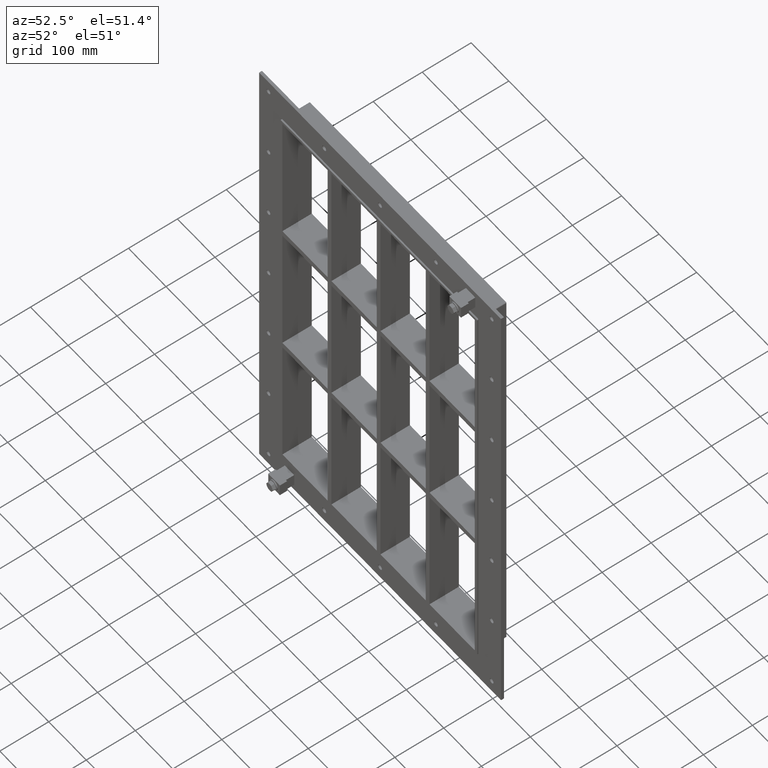
[diagram: clean part render]
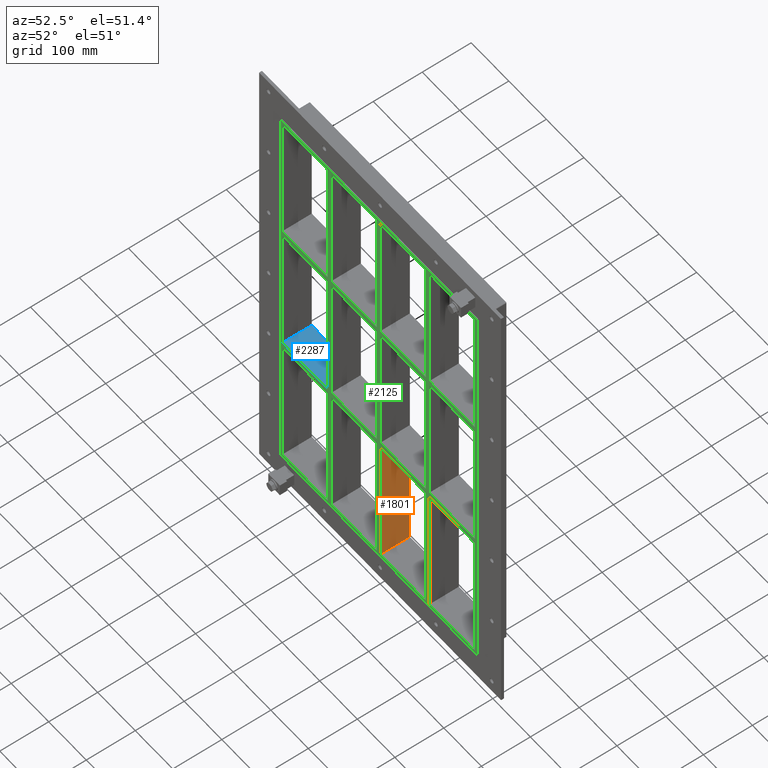
[diagram: same view with three faces highlighted in distinct colors, each labeled with its STEP entity id]
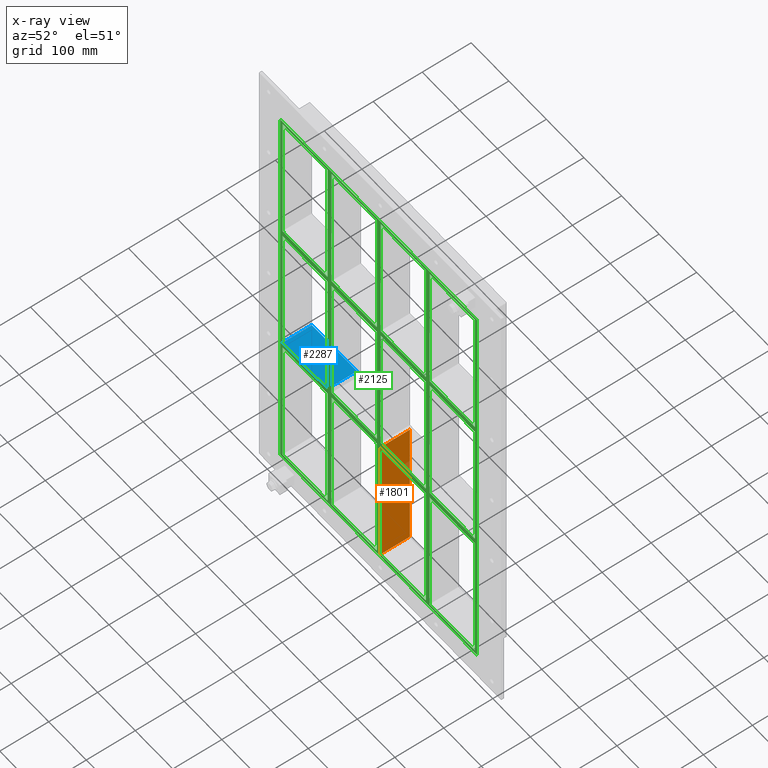
[diagram: x-ray of the same camera — body ghosted, the three highlighted faces saturated]
A machine part, auxiliary view with three faces highlighted in distinct colors.
The next image is the same camera in x-ray (body ghosted, the three faces saturated) — at least one of them is partly hidden behind the body in this view.
Their STEP definitions:

[orange] entity #1801 — the highlighted planar face has unit normal (1, 0, 0).
#1512=CARTESIAN_POINT('',(5.000000000007283,57.0,-151.00000000001125));
#1513=VERTEX_POINT('',#1512);
#1520=CARTESIAN_POINT('',(5.000000000007283,57.0,-428.99999999998164));
#1521=VERTEX_POINT('',#1520);
#1522=CARTESIAN_POINT('',(5.000000000007283,57.0,-151.00000000001125));
#1523=DIRECTION('',(0.0,0.0,-1.0));
#1524=VECTOR('',#1523,277.99999999997044);
#1525=LINE('',#1522,#1524);
#1526=EDGE_CURVE('',#1513,#1521,#1525,.T.);
#1771=CARTESIAN_POINT('',(5.000000000007283,-3.0,429.00000000000011));
#1772=DIRECTION('',(1.0,0.0,0.0));
#1773=DIRECTION('',(0.0,0.0,-1.0));
#1774=AXIS2_PLACEMENT_3D('',#1771,#1772,#1773);
#1775=PLANE('',#1774);
#1776=CARTESIAN_POINT('',(5.000000000007283,-3.0,-151.00000000001125));
#1777=VERTEX_POINT('',#1776);
#1778=CARTESIAN_POINT('',(5.000000000007283,-3.0,-151.00000000001125));
#1779=DIRECTION('',(0.0,1.0,0.0));
#1780=VECTOR('',#1779,60.0);
#1781=LINE('',#1778,#1780);
#1782=EDGE_CURVE('',#1777,#1513,#1781,.T.);
#1783=ORIENTED_EDGE('',*,*,#1782,.F.);
#1784=CARTESIAN_POINT('',(5.000000000007283,-3.0,-428.99999999998164));
#1785=VERTEX_POINT('',#1784);
#1786=CARTESIAN_POINT('',(5.000000000007283,-3.0,-151.00000000001125));
#1787=DIRECTION('',(0.0,0.0,-1.0));
#1788=VECTOR('',#1787,277.99999999997044);
#1789=LINE('',#1786,#1788);
#1790=EDGE_CURVE('',#1777,#1785,#1789,.T.);
#1791=ORIENTED_EDGE('',*,*,#1790,.T.);
#1792=CARTESIAN_POINT('',(5.000000000007283,57.000000000000007,-429.0));
#1793=DIRECTION('',(0.0,-1.0,0.0));
#1794=VECTOR('',#1793,60.000000000000007);
#1795=LINE('',#1792,#1794);
#1796=EDGE_CURVE('',#1521,#1785,#1795,.T.);
#1797=ORIENTED_EDGE('',*,*,#1796,.F.);
#1798=ORIENTED_EDGE('',*,*,#1526,.F.);
#1799=EDGE_LOOP('',(#1783,#1791,#1797,#1798));
#1800=FACE_OUTER_BOUND('',#1799,.T.);
#1801=ADVANCED_FACE('',(#1800),#1775,.T.);

[blue] entity #2287 — the highlighted planar face has unit normal (0, 0, 1).
#1202=CARTESIAN_POINT('',(-135.50000000000028,57.0,-138.99999999999977));
#1203=VERTEX_POINT('',#1202);
#1210=CARTESIAN_POINT('',(-135.50000000000028,-3.0,-138.99999999999977));
#1211=VERTEX_POINT('',#1210);
#1212=CARTESIAN_POINT('',(-135.50000000000028,57.0,-138.99999999999977));
#1213=DIRECTION('',(0.0,-1.0,0.0));
#1214=VECTOR('',#1213,60.0);
#1215=LINE('',#1212,#1214);
#1216=EDGE_CURVE('',#1203,#1211,#1215,.T.);
#1315=CARTESIAN_POINT('',(-255.99999999999864,57.0,-138.99999999999977));
#1316=VERTEX_POINT('',#1315);
#1323=CARTESIAN_POINT('',(-255.99999999999864,57.0,-138.99999999999977));
#1324=DIRECTION('',(1.0,0.0,0.0));
#1325=VECTOR('',#1324,120.49999999999835);
#1326=LINE('',#1323,#1325);
#1327=EDGE_CURVE('',#1316,#1203,#1326,.T.);
#2017=CARTESIAN_POINT('',(-255.99999999999864,-3.0,-138.99999999999977));
#2018=VERTEX_POINT('',#2017);
#2019=CARTESIAN_POINT('',(-255.99999999999864,-3.0,-138.99999999999977));
#2020=DIRECTION('',(1.0,0.0,0.0));
#2021=VECTOR('',#2020,120.49999999999835);
#2022=LINE('',#2019,#2021);
#2023=EDGE_CURVE('',#2018,#1211,#2022,.T.);
#2271=CARTESIAN_POINT('',(-255.99999999999864,-3.0,-138.99999999999977));
#2272=DIRECTION('',(0.0,0.0,1.0));
#2273=DIRECTION('',(1.0,0.0,0.0));
#2274=AXIS2_PLACEMENT_3D('',#2271,#2272,#2273);
#2275=PLANE('',#2274);
#2276=ORIENTED_EDGE('',*,*,#1216,.F.);
#2277=ORIENTED_EDGE('',*,*,#1327,.F.);
#2278=CARTESIAN_POINT('',(-256.0,-3.0,-138.99999999999977));
#2279=DIRECTION('',(0.0,1.0,0.0));
#2280=VECTOR('',#2279,60.000000000000007);
#2281=LINE('',#2278,#2280);
#2282=EDGE_CURVE('',#2018,#1316,#2281,.T.);
#2283=ORIENTED_EDGE('',*,*,#2282,.F.);
#2284=ORIENTED_EDGE('',*,*,#2023,.T.);
#2285=EDGE_LOOP('',(#2276,#2277,#2283,#2284));
#2286=FACE_OUTER_BOUND('',#2285,.T.);
#2287=ADVANCED_FACE('',(#2286),#2275,.T.);

[green] entity #2125 — the highlighted planar face has unit normal (0, 1, 0).
#633=CARTESIAN_POINT('',(-135.50000000000034,-3.0,138.99999999998855));
#634=VERTEX_POINT('',#633);
#643=CARTESIAN_POINT('',(-255.99999999999864,-3.0,138.9999999999884));
#644=VERTEX_POINT('',#643);
#645=CARTESIAN_POINT('',(-135.50000000000034,-3.0,138.99999999998857));
#646=DIRECTION('',(-1.0,0.0,0.0));
#647=VECTOR('',#646,120.49999999999829);
#648=LINE('',#645,#647);
#649=EDGE_CURVE('',#634,#644,#648,.T.);
#673=CARTESIAN_POINT('',(-5.00000000000032,-3.0,138.99999999998875));
#674=VERTEX_POINT('',#673);
#683=CARTESIAN_POINT('',(-125.49999999999272,-3.0,138.99999999998857));
#684=VERTEX_POINT('',#683);
#685=CARTESIAN_POINT('',(-5.000000000000341,-3.0,138.99999999998875));
#686=DIRECTION('',(-1.0,0.0,0.0));
#687=VECTOR('',#686,120.49999999999238);
#688=LINE('',#685,#687);
#689=EDGE_CURVE('',#674,#684,#688,.T.);
#715=CARTESIAN_POINT('',(135.50000000000728,-3.0,138.99999999998894));
#716=VERTEX_POINT('',#715);
#731=CARTESIAN_POINT('',(256.00000000000364,-3.0,138.99999999998911));
#732=VERTEX_POINT('',#731);
#739=CARTESIAN_POINT('',(256.00000000000364,-3.0,138.99999999998911));
#740=DIRECTION('',(-1.0,0.0,0.0));
#741=VECTOR('',#740,120.49999999999636);
#742=LINE('',#739,#741);
#743=EDGE_CURVE('',#732,#716,#742,.T.);
#753=CARTESIAN_POINT('',(125.49999999999969,-3.0,138.99999999998894));
#754=VERTEX_POINT('',#753);
#763=CARTESIAN_POINT('',(5.000000000007283,-3.0,138.99999999998875));
#764=VERTEX_POINT('',#763);
#765=CARTESIAN_POINT('',(125.49999999999969,-3.0,138.99999999998894));
#766=DIRECTION('',(-1.0,0.0,0.0));
#767=VECTOR('',#766,120.49999999999241);
#768=LINE('',#765,#767);
#769=EDGE_CURVE('',#754,#764,#768,.T.);
#795=CARTESIAN_POINT('',(-135.50000000000034,-3.0,151.00000000000023));
#796=VERTEX_POINT('',#795);
#811=CARTESIAN_POINT('',(-255.99999999999864,-3.0,151.00000000000023));
#812=VERTEX_POINT('',#811);
#819=CARTESIAN_POINT('',(-255.99999999999864,-3.0,151.00000000000023));
#820=DIRECTION('',(1.0,0.0,0.0));
#821=VECTOR('',#820,120.49999999999829);
#822=LINE('',#819,#821);
#823=EDGE_CURVE('',#812,#796,#822,.T.);
#833=CARTESIAN_POINT('',(135.50000000000725,-3.0,151.00000000000023));
#834=VERTEX_POINT('',#833);
#843=CARTESIAN_POINT('',(255.9999999999996,-3.0,151.00000000000023));
#844=VERTEX_POINT('',#843);
#845=CARTESIAN_POINT('',(135.50000000000728,-3.0,151.00000000000023));
#846=DIRECTION('',(1.0,0.0,0.0));
#847=VECTOR('',#846,120.49999999999227);
#848=LINE('',#845,#847);
#849=EDGE_CURVE('',#834,#844,#848,.T.);
#875=CARTESIAN_POINT('',(-5.00000000000032,-3.0,151.00000000000023));
#876=VERTEX_POINT('',#875);
#891=CARTESIAN_POINT('',(-125.49999999999272,-3.0,151.00000000000023));
#892=VERTEX_POINT('',#891);
#899=CARTESIAN_POINT('',(-125.49999999999272,-3.0,151.00000000000023));
#900=DIRECTION('',(1.0,0.0,0.0));
#901=VECTOR('',#900,120.49999999999238);
#902=LINE('',#899,#901);
#903=EDGE_CURVE('',#892,#876,#902,.T.);
#915=CARTESIAN_POINT('',(125.49999999999966,-3.0,151.00000000000023));
#916=VERTEX_POINT('',#915);
#931=CARTESIAN_POINT('',(5.000000000007283,-3.0,151.00000000000023));
#932=VERTEX_POINT('',#931);
#939=CARTESIAN_POINT('',(5.000000000007276,-3.0,151.00000000000023));
#940=DIRECTION('',(1.0,0.0,0.0));
#941=VECTOR('',#940,120.49999999999238);
#942=LINE('',#939,#941);
#943=EDGE_CURVE('',#932,#916,#942,.T.);
#962=CARTESIAN_POINT('',(-256.0,-3.0,429.00000000000011));
#963=VERTEX_POINT('',#962);
#970=CARTESIAN_POINT('',(-256.0,-3.0,151.0000000000002));
#971=DIRECTION('',(0.0,0.0,1.0));
#972=VECTOR('',#971,278.0);
#973=LINE('',#970,#972);
#974=EDGE_CURVE('',#812,#963,#973,.T.);
#993=CARTESIAN_POINT('',(255.9999999999996,-3.0,-138.99999999999977));
#994=VERTEX_POINT('',#993);
#1001=CARTESIAN_POINT('',(256.0,-3.0,138.99999999998911));
#1002=DIRECTION('',(0.0,0.0,-1.0));
#1003=VECTOR('',#1002,277.99999999998886);
#1004=LINE('',#1001,#1003);
#1005=EDGE_CURVE('',#732,#994,#1004,.T.);
#1016=CARTESIAN_POINT('',(256.0,-3.0,429.00000000000011));
#1017=VERTEX_POINT('',#1016);
#1018=CARTESIAN_POINT('',(256.0,-3.0,429.00000000000011));
#1019=DIRECTION('',(0.0,0.0,-1.0));
#1020=VECTOR('',#1019,277.99999999999989);
#1021=LINE('',#1018,#1020);
#1022=EDGE_CURVE('',#1017,#844,#1021,.T.);
#1047=CARTESIAN_POINT('',(125.49999999999966,-3.0,429.00000000000011));
#1048=VERTEX_POINT('',#1047);
#1049=CARTESIAN_POINT('',(125.49999999999969,-3.0,151.00000000000023));
#1050=DIRECTION('',(0.0,0.0,1.0));
#1051=VECTOR('',#1050,277.99999999999989);
#1052=LINE('',#1049,#1051);
#1053=EDGE_CURVE('',#916,#1048,#1052,.T.);
#1086=CARTESIAN_POINT('',(135.50000000000728,-3.0,429.00000000000011));
#1087=VERTEX_POINT('',#1086);
#1094=CARTESIAN_POINT('',(135.50000000000728,-3.0,429.00000000000011));
#1095=DIRECTION('',(0.0,0.0,-1.0));
#1096=VECTOR('',#1095,277.99999999999989);
#1097=LINE('',#1094,#1096);
#1098=EDGE_CURVE('',#1087,#834,#1097,.T.);
#1109=CARTESIAN_POINT('',(-5.000000000000355,-3.0,429.00000000000011));
#1110=VERTEX_POINT('',#1109);
#1111=CARTESIAN_POINT('',(-5.000000000000321,-3.0,151.00000000000023));
#1112=DIRECTION('',(0.0,0.0,1.0));
#1113=VECTOR('',#1112,277.99999999999989);
#1114=LINE('',#1111,#1113);
#1115=EDGE_CURVE('',#876,#1110,#1114,.T.);
#1148=CARTESIAN_POINT('',(5.000000000007283,-3.0,429.00000000000011));
#1149=VERTEX_POINT('',#1148);
#1156=CARTESIAN_POINT('',(5.000000000007283,-3.0,429.00000000000011));
#1157=DIRECTION('',(0.0,0.0,-1.0));
#1158=VECTOR('',#1157,277.99999999999989);
#1159=LINE('',#1156,#1158);
#1160=EDGE_CURVE('',#1149,#932,#1159,.T.);
#1171=CARTESIAN_POINT('',(-135.50000000000037,-3.0,429.00000000000011));
#1172=VERTEX_POINT('',#1171);
#1173=CARTESIAN_POINT('',(-135.50000000000034,-3.0,151.00000000000023));
#1174=DIRECTION('',(0.0,0.0,1.0));
#1175=VECTOR('',#1174,277.99999999999989);
#1176=LINE('',#1173,#1175);
#1177=EDGE_CURVE('',#796,#1172,#1176,.T.);
#1210=CARTESIAN_POINT('',(-135.50000000000028,-3.0,-138.99999999999977));
#1211=VERTEX_POINT('',#1210);
#1218=CARTESIAN_POINT('',(-135.50000000000028,-3.0,-138.99999999999977));
#1219=DIRECTION('',(0.0,0.0,1.0));
#1220=VECTOR('',#1219,277.99999999998829);
#1221=LINE('',#1218,#1220);
#1222=EDGE_CURVE('',#1211,#634,#1221,.T.);
#1241=CARTESIAN_POINT('',(-125.49999999999272,-3.0,429.00000000000011));
#1242=VERTEX_POINT('',#1241);
#1249=CARTESIAN_POINT('',(-125.49999999999272,-3.0,429.00000000000011));
#1250=DIRECTION('',(0.0,0.0,-1.0));
#1251=VECTOR('',#1250,277.99999999999989);
#1252=LINE('',#1249,#1251);
#1253=EDGE_CURVE('',#1242,#892,#1252,.T.);
#1589=CARTESIAN_POINT('',(125.49999999999972,-3.0,-138.99999999999977));
#1590=VERTEX_POINT('',#1589);
#1597=CARTESIAN_POINT('',(125.49999999999972,-3.0,-138.99999999999977));
#1598=DIRECTION('',(0.0,0.0,1.0));
#1599=VECTOR('',#1598,277.99999999998863);
#1600=LINE('',#1597,#1599);
#1601=EDGE_CURVE('',#1590,#754,#1600,.T.);
#1611=CARTESIAN_POINT('',(125.49999999999972,-3.0,-151.00000000001106));
#1612=VERTEX_POINT('',#1611);
#1620=CARTESIAN_POINT('',(125.49999999999976,-3.0,-429.0));
#1621=VERTEX_POINT('',#1620);
#1628=CARTESIAN_POINT('',(125.49999999999976,-3.0,-429.0));
#1629=DIRECTION('',(0.0,0.0,1.0));
#1630=VECTOR('',#1629,277.99999999998892);
#1631=LINE('',#1628,#1630);
#1632=EDGE_CURVE('',#1621,#1612,#1631,.T.);
#1643=CARTESIAN_POINT('',(135.50000000000728,-3.0,-138.99999999999977));
#1644=VERTEX_POINT('',#1643);
#1645=CARTESIAN_POINT('',(135.50000000000728,-3.0,138.99999999998897));
#1646=DIRECTION('',(0.0,0.0,-1.0));
#1647=VECTOR('',#1646,277.99999999998875);
#1648=LINE('',#1645,#1647);
#1649=EDGE_CURVE('',#716,#1644,#1648,.T.);
#1666=CARTESIAN_POINT('',(135.50000000000728,-3.0,-151.00000000001103));
#1667=VERTEX_POINT('',#1666);
#1674=CARTESIAN_POINT('',(135.50000000000728,-3.0,-428.99999999998164));
#1675=VERTEX_POINT('',#1674);
#1676=CARTESIAN_POINT('',(135.50000000000728,-3.0,-151.00000000001103));
#1677=DIRECTION('',(0.0,0.0,-1.0));
#1678=VECTOR('',#1677,277.99999999997067);
#1679=LINE('',#1676,#1678);
#1680=EDGE_CURVE('',#1667,#1675,#1679,.T.);
#1699=CARTESIAN_POINT('',(-5.000000000000284,-3.0,-138.99999999999977));
#1700=VERTEX_POINT('',#1699);
#1707=CARTESIAN_POINT('',(-5.000000000000285,-3.0,-138.99999999999977));
#1708=DIRECTION('',(0.0,0.0,1.0));
#1709=VECTOR('',#1708,277.99999999998852);
#1710=LINE('',#1707,#1709);
#1711=EDGE_CURVE('',#1700,#674,#1710,.T.);
#1721=CARTESIAN_POINT('',(-5.000000000000283,-3.0,-151.00000000001125));
#1722=VERTEX_POINT('',#1721);
#1730=CARTESIAN_POINT('',(-5.000000000000249,-3.0,-429.0));
#1731=VERTEX_POINT('',#1730);
#1738=CARTESIAN_POINT('',(-5.000000000000249,-3.0,-429.0));
#1739=DIRECTION('',(0.0,0.0,1.0));
#1740=VECTOR('',#1739,277.99999999998875);
#1741=LINE('',#1738,#1740);
#1742=EDGE_CURVE('',#1731,#1722,#1741,.T.);
#1753=CARTESIAN_POINT('',(5.000000000007283,-3.0,-138.99999999999977));
#1754=VERTEX_POINT('',#1753);
#1755=CARTESIAN_POINT('',(5.000000000007283,-3.0,138.99999999998875));
#1756=DIRECTION('',(0.0,0.0,-1.0));
#1757=VECTOR('',#1756,277.99999999998852);
#1758=LINE('',#1755,#1757);
#1759=EDGE_CURVE('',#764,#1754,#1758,.T.);
#1776=CARTESIAN_POINT('',(5.000000000007283,-3.0,-151.00000000001125));
#1777=VERTEX_POINT('',#1776);
#1784=CARTESIAN_POINT('',(5.000000000007283,-3.0,-428.99999999998164));
#1785=VERTEX_POINT('',#1784);
#1786=CARTESIAN_POINT('',(5.000000000007283,-3.0,-151.00000000001125));
#1787=DIRECTION('',(0.0,0.0,-1.0));
#1788=VECTOR('',#1787,277.99999999997044);
#1789=LINE('',#1786,#1788);
#1790=EDGE_CURVE('',#1777,#1785,#1789,.T.);
#1809=CARTESIAN_POINT('',(-125.49999999999272,-3.0,-428.99999999998164));
#1810=VERTEX_POINT('',#1809);
#1817=CARTESIAN_POINT('',(-5.000000000000256,-3.0,-429.0));
#1818=DIRECTION('',(-1.0,0.0,0.0));
#1819=VECTOR('',#1818,120.49999999999247);
#1820=LINE('',#1817,#1819);
#1821=EDGE_CURVE('',#1731,#1810,#1820,.T.);
#1834=CARTESIAN_POINT('',(125.49999999999974,-3.0,-429.0));
#1835=DIRECTION('',(-1.0,0.0,0.0));
#1836=VECTOR('',#1835,120.49999999999247);
#1837=LINE('',#1834,#1836);
#1838=EDGE_CURVE('',#1621,#1785,#1837,.T.);
#1849=CARTESIAN_POINT('',(256.0,-3.0,-429.0));
#1850=VERTEX_POINT('',#1849);
#1851=CARTESIAN_POINT('',(256.0,-3.0,-429.0));
#1852=DIRECTION('',(-1.0,0.0,0.0));
#1853=VECTOR('',#1852,120.49999999999272);
#1854=LINE('',#1851,#1853);
#1855=EDGE_CURVE('',#1850,#1675,#1854,.T.);
#1867=CARTESIAN_POINT('',(0.0,-3.0,-7.339896E-014));
#1868=DIRECTION('',(0.0,1.0,0.0));
#1869=DIRECTION('',(0.0,0.0,1.0));
#1870=AXIS2_PLACEMENT_3D('',#1867,#1868,#1869);
#1871=PLANE('',#1870);
#1872=CARTESIAN_POINT('',(-260.0,-3.0,-435.00000000000011));
#1873=VERTEX_POINT('',#1872);
#1874=CARTESIAN_POINT('',(-262.0,-3.0,-433.00000000000011));
#1875=VERTEX_POINT('',#1874);
#1876=CARTESIAN_POINT('',(-260.0,-3.0,-433.00000000000011));
#1877=DIRECTION('',(0.0,1.0,0.0));
#1878=DIRECTION('',(-0.707106781186548,0.0,-0.707106781186548));
#1879=AXIS2_PLACEMENT_3D('',#1876,#1877,#1878);
#1880=CIRCLE('',#1879,2.0);
#1881=EDGE_CURVE('',#1873,#1875,#1880,.T.);
#1882=ORIENTED_EDGE('',*,*,#1881,.F.);
#1883=CARTESIAN_POINT('',(260.0,-3.0,-435.00000000000011));
#1884=VERTEX_POINT('',#1883);
#1885=CARTESIAN_POINT('',(-260.0,-3.0,-435.00000000000011));
#1886=DIRECTION('',(1.0,0.0,0.0));
#1887=VECTOR('',#1886,520.0);
#1888=LINE('',#1885,#1887);
#1889=EDGE_CURVE('',#1873,#1884,#1888,.T.);
#1890=ORIENTED_EDGE('',*,*,#1889,.T.);
#1891=CARTESIAN_POINT('',(262.0,-3.0,-433.00000000000011));
#1892=VERTEX_POINT('',#1891);
#1893=CARTESIAN_POINT('',(260.0,-3.0,-433.00000000000011));
#1894=DIRECTION('',(0.0,1.0,0.0));
#1895=DIRECTION('',(0.707106781186548,0.0,-0.707106781186548));
#1896=AXIS2_PLACEMENT_3D('',#1893,#1894,#1895);
#1897=CIRCLE('',#1896,2.0);
#1898=EDGE_CURVE('',#1892,#1884,#1897,.T.);
#1899=ORIENTED_EDGE('',*,*,#1898,.F.);
#1900=CARTESIAN_POINT('',(262.0,-3.0,433.0));
#1901=VERTEX_POINT('',#1900);
#1902=CARTESIAN_POINT('',(262.0,-3.0,-433.00000000000011));
#1903=DIRECTION('',(0.0,0.0,1.0));
#1904=VECTOR('',#1903,866.00000000000011);
#1905=LINE('',#1902,#1904);
#1906=EDGE_CURVE('',#1892,#1901,#1905,.T.);
#1907=ORIENTED_EDGE('',*,*,#1906,.T.);
#1908=CARTESIAN_POINT('',(260.0,-3.0,435.0));
#1909=VERTEX_POINT('',#1908);
#1910=CARTESIAN_POINT('',(260.0,-3.0,433.0));
#1911=DIRECTION('',(0.0,1.0,0.0));
#1912=DIRECTION('',(0.707106781186548,0.0,0.707106781186548));
#1913=AXIS2_PLACEMENT_3D('',#1910,#1911,#1912);
#1914=CIRCLE('',#1913,2.0);
#1915=EDGE_CURVE('',#1909,#1901,#1914,.T.);
#1916=ORIENTED_EDGE('',*,*,#1915,.F.);
#1917=CARTESIAN_POINT('',(-260.0,-3.0,435.0));
#1918=VERTEX_POINT('',#1917);
#1919=CARTESIAN_POINT('',(260.0,-3.0,435.0));
#1920=DIRECTION('',(-1.0,0.0,0.0));
#1921=VECTOR('',#1920,520.0);
#1922=LINE('',#1919,#1921);
#1923=EDGE_CURVE('',#1909,#1918,#1922,.T.);
#1924=ORIENTED_EDGE('',*,*,#1923,.T.);
#1925=CARTESIAN_POINT('',(-262.0,-3.0,433.0));
#1926=VERTEX_POINT('',#1925);
#1927=CARTESIAN_POINT('',(-260.0,-3.0,433.0));
#1928=DIRECTION('',(0.0,1.0,0.0));
#1929=DIRECTION('',(-0.707106781186548,0.0,0.707106781186548));
#1930=AXIS2_PLACEMENT_3D('',#1927,#1928,#1929);
#1931=CIRCLE('',#1930,2.0);
#1932=EDGE_CURVE('',#1926,#1918,#1931,.T.);
#1933=ORIENTED_EDGE('',*,*,#1932,.F.);
#1934=CARTESIAN_POINT('',(-262.0,-3.0,433.0));
#1935=DIRECTION('',(0.0,0.0,-1.0));
#1936=VECTOR('',#1935,866.00000000000011);
#1937=LINE('',#1934,#1936);
#1938=EDGE_CURVE('',#1926,#1875,#1937,.T.);
#1939=ORIENTED_EDGE('',*,*,#1938,.T.);
#1940=EDGE_LOOP('',(#1882,#1890,#1899,#1907,#1916,#1924,#1933,#1939));
#1941=FACE_OUTER_BOUND('',#1940,.T.);
#1942=ORIENTED_EDGE('',*,*,#974,.T.);
#1943=CARTESIAN_POINT('',(-256.0,-3.0,429.00000000000006));
#1944=DIRECTION('',(1.0,0.0,0.0));
#1945=VECTOR('',#1944,120.49999999999966);
#1946=LINE('',#1943,#1945);
#1947=EDGE_CURVE('',#963,#1172,#1946,.T.);
#1948=ORIENTED_EDGE('',*,*,#1947,.T.);
#1949=ORIENTED_EDGE('',*,*,#1177,.F.);
#1950=ORIENTED_EDGE('',*,*,#823,.F.);
#1951=EDGE_LOOP('',(#1942,#1948,#1949,#1950));
#1952=FACE_BOUND('',#1951,.T.);
#1953=ORIENTED_EDGE('',*,*,#1005,.T.);
#1954=CARTESIAN_POINT('',(135.50000000000728,-3.0,-138.99999999999977));
#1955=DIRECTION('',(1.0,0.0,0.0));
#1956=VECTOR('',#1955,120.49999999999227);
#1957=LINE('',#1954,#1956);
#1958=EDGE_CURVE('',#1644,#994,#1957,.T.);
#1959=ORIENTED_EDGE('',*,*,#1958,.F.);
#1960=ORIENTED_EDGE('',*,*,#1649,.F.);
#1961=ORIENTED_EDGE('',*,*,#743,.F.);
#1962=EDGE_LOOP('',(#1953,#1959,#1960,#1961));
#1963=FACE_BOUND('',#1962,.T.);
#1964=ORIENTED_EDGE('',*,*,#1601,.F.);
#1965=CARTESIAN_POINT('',(5.000000000007276,-3.0,-138.99999999999977));
#1966=DIRECTION('',(1.0,0.0,0.0));
#1967=VECTOR('',#1966,120.49999999999244);
#1968=LINE('',#1965,#1967);
#1969=EDGE_CURVE('',#1754,#1590,#1968,.T.);
#1970=ORIENTED_EDGE('',*,*,#1969,.F.);
#1971=ORIENTED_EDGE('',*,*,#1759,.F.);
#1972=ORIENTED_EDGE('',*,*,#769,.F.);
#1973=EDGE_LOOP('',(#1964,#1970,#1971,#1972));
#1974=FACE_BOUND('',#1973,.T.);
#1975=ORIENTED_EDGE('',*,*,#1711,.F.);
#1976=CARTESIAN_POINT('',(-125.49999999999272,-3.0,-138.99999999999977));
#1977=VERTEX_POINT('',#1976);
#1978=CARTESIAN_POINT('',(-125.49999999999272,-3.0,-138.99999999999977));
#1979=DIRECTION('',(1.0,0.0,0.0));
#1980=VECTOR('',#1979,120.49999999999244);
#1981=LINE('',#1978,#1980);
#1982=EDGE_CURVE('',#1977,#1700,#1981,.T.);
#1983=ORIENTED_EDGE('',*,*,#1982,.F.);
#1984=CARTESIAN_POINT('',(-125.49999999999272,-3.0,138.99999999998857));
#1985=DIRECTION('',(0.0,0.0,-1.0));
#1986=VECTOR('',#1985,277.99999999998835);
#1987=LINE('',#1984,#1986);
#1988=EDGE_CURVE('',#684,#1977,#1987,.T.);
#1989=ORIENTED_EDGE('',*,*,#1988,.F.);
#1990=ORIENTED_EDGE('',*,*,#689,.F.);
#1991=EDGE_LOOP('',(#1975,#1983,#1989,#1990));
#1992=FACE_BOUND('',#1991,.T.);
#1993=ORIENTED_EDGE('',*,*,#943,.F.);
#1994=ORIENTED_EDGE('',*,*,#1160,.F.);
#1995=CARTESIAN_POINT('',(5.000000000007276,-3.0,429.00000000000006));
#1996=DIRECTION('',(1.0,0.0,0.0));
#1997=VECTOR('',#1996,120.49999999999238);
#1998=LINE('',#1995,#1997);
#1999=EDGE_CURVE('',#1149,#1048,#1998,.T.);
#2000=ORIENTED_EDGE('',*,*,#1999,.T.);
#2001=ORIENTED_EDGE('',*,*,#1053,.F.);
#2002=EDGE_LOOP('',(#1993,#1994,#2000,#2001));
#2003=FACE_BOUND('',#2002,.T.);
#2004=ORIENTED_EDGE('',*,*,#903,.F.);
#2005=ORIENTED_EDGE('',*,*,#1253,.F.);
#2006=CARTESIAN_POINT('',(-125.49999999999272,-3.0,429.00000000000006));
#2007=DIRECTION('',(1.0,0.0,0.0));
#2008=VECTOR('',#2007,120.49999999999238);
#2009=LINE('',#2006,#2008);
#2010=EDGE_CURVE('',#1242,#1110,#2009,.T.);
#2011=ORIENTED_EDGE('',*,*,#2010,.T.);
#2012=ORIENTED_EDGE('',*,*,#1115,.F.);
#2013=EDGE_LOOP('',(#2004,#2005,#2011,#2012));
#2014=FACE_BOUND('',#2013,.T.);
#2015=ORIENTED_EDGE('',*,*,#649,.F.);
#2016=ORIENTED_EDGE('',*,*,#1222,.F.);
#2017=CARTESIAN_POINT('',(-255.99999999999864,-3.0,-138.99999999999977));
#2018=VERTEX_POINT('',#2017);
#2019=CARTESIAN_POINT('',(-255.99999999999864,-3.0,-138.99999999999977));
#2020=DIRECTION('',(1.0,0.0,0.0));
#2021=VECTOR('',#2020,120.49999999999835);
#2022=LINE('',#2019,#2021);
#2023=EDGE_CURVE('',#2018,#1211,#2022,.T.);
#2024=ORIENTED_EDGE('',*,*,#2023,.F.);
#2025=CARTESIAN_POINT('',(-256.0,-3.0,-138.99999999999977));
#2026=DIRECTION('',(0.0,0.0,1.0));
#2027=VECTOR('',#2026,277.99999999998818);
#2028=LINE('',#2025,#2027);
#2029=EDGE_CURVE('',#2018,#644,#2028,.T.);
#2030=ORIENTED_EDGE('',*,*,#2029,.T.);
#2031=EDGE_LOOP('',(#2015,#2016,#2024,#2030));
#2032=FACE_BOUND('',#2031,.T.);
#2033=ORIENTED_EDGE('',*,*,#849,.F.);
#2034=ORIENTED_EDGE('',*,*,#1098,.F.);
#2035=CARTESIAN_POINT('',(135.50000000000728,-3.0,429.00000000000006));
#2036=DIRECTION('',(1.0,0.0,0.0));
#2037=VECTOR('',#2036,120.49999999999278);
#2038=LINE('',#2035,#2037);
#2039=EDGE_CURVE('',#1087,#1017,#2038,.T.);
#2040=ORIENTED_EDGE('',*,*,#2039,.T.);
#2041=ORIENTED_EDGE('',*,*,#1022,.T.);
#2042=EDGE_LOOP('',(#2033,#2034,#2040,#2041));
#2043=FACE_BOUND('',#2042,.T.);
#2044=ORIENTED_EDGE('',*,*,#1838,.T.);
#2045=ORIENTED_EDGE('',*,*,#1790,.F.);
#2046=CARTESIAN_POINT('',(125.49999999999972,-3.0,-151.00000000001106));
#2047=DIRECTION('',(-1.0,0.0,0.0));
#2048=VECTOR('',#2047,120.49999999999244);
#2049=LINE('',#2046,#2048);
#2050=EDGE_CURVE('',#1612,#1777,#2049,.T.);
#2051=ORIENTED_EDGE('',*,*,#2050,.F.);
#2052=ORIENTED_EDGE('',*,*,#1632,.F.);
#2053=EDGE_LOOP('',(#2044,#2045,#2051,#2052));
#2054=FACE_BOUND('',#2053,.T.);
#2055=ORIENTED_EDGE('',*,*,#1821,.T.);
#2056=CARTESIAN_POINT('',(-125.49999999999272,-3.0,-151.00000000001143));
#2057=VERTEX_POINT('',#2056);
#2058=CARTESIAN_POINT('',(-125.49999999999272,-3.0,-151.00000000001137));
#2059=DIRECTION('',(0.0,0.0,-1.0));
#2060=VECTOR('',#2059,277.99999999997033);
#2061=LINE('',#2058,#2060);
#2062=EDGE_CURVE('',#2057,#1810,#2061,.T.);
#2063=ORIENTED_EDGE('',*,*,#2062,.F.);
#2064=CARTESIAN_POINT('',(-5.000000000000284,-3.0,-151.00000000001125));
#2065=DIRECTION('',(-1.0,0.0,0.0));
#2066=VECTOR('',#2065,120.49999999999244);
#2067=LINE('',#2064,#2066);
#2068=EDGE_CURVE('',#1722,#2057,#2067,.T.);
#2069=ORIENTED_EDGE('',*,*,#2068,.F.);
#2070=ORIENTED_EDGE('',*,*,#1742,.F.);
#2071=EDGE_LOOP('',(#2055,#2063,#2069,#2070));
#2072=FACE_BOUND('',#2071,.T.);
#2073=ORIENTED_EDGE('',*,*,#1680,.F.);
#2074=CARTESIAN_POINT('',(256.00000000000364,-3.0,-151.00000000001089));
#2075=VERTEX_POINT('',#2074);
#2076=CARTESIAN_POINT('',(256.00000000000364,-3.0,-151.00000000001089));
#2077=DIRECTION('',(-1.0,0.0,0.0));
#2078=VECTOR('',#2077,120.49999999999636);
#2079=LINE('',#2076,#2078);
#2080=EDGE_CURVE('',#2075,#1667,#2079,.T.);
#2081=ORIENTED_EDGE('',*,*,#2080,.F.);
#2082=CARTESIAN_POINT('',(256.0,-3.0,-151.00000000001091));
#2083=DIRECTION('',(0.0,0.0,-1.0));
#2084=VECTOR('',#2083,277.99999999998909);
#2085=LINE('',#2082,#2084);
#2086=EDGE_CURVE('',#2075,#1850,#2085,.T.);
#2087=ORIENTED_EDGE('',*,*,#2086,.T.);
#2088=ORIENTED_EDGE('',*,*,#1855,.T.);
#2089=EDGE_LOOP('',(#2073,#2081,#2087,#2088));
#2090=FACE_BOUND('',#2089,.T.);
#2091=CARTESIAN_POINT('',(-135.50000000000026,-3.0,-151.00000000001143));
#2092=VERTEX_POINT('',#2091);
#2093=CARTESIAN_POINT('',(-255.99999999999864,-3.0,-151.0000000000116));
#2094=VERTEX_POINT('',#2093);
#2095=CARTESIAN_POINT('',(-135.50000000000023,-3.0,-151.00000000001143));
#2096=DIRECTION('',(-1.0,0.0,0.0));
#2097=VECTOR('',#2096,120.49999999999841);
#2098=LINE('',#2095,#2097);
#2099=EDGE_CURVE('',#2092,#2094,#2098,.T.);
#2100=ORIENTED_EDGE('',*,*,#2099,.F.);
#2101=CARTESIAN_POINT('',(-135.50000000000026,-3.0,-429.0));
#2102=VERTEX_POINT('',#2101);
#2103=CARTESIAN_POINT('',(-135.50000000000026,-3.0,-429.0));
#2104=DIRECTION('',(0.0,0.0,1.0));
#2105=VECTOR('',#2104,277.99999999998852);
#2106=LINE('',#2103,#2105);
#2107=EDGE_CURVE('',#2102,#2092,#2106,.T.);
#2108=ORIENTED_EDGE('',*,*,#2107,.F.);
#2109=CARTESIAN_POINT('',(-256.0,-3.0,-429.0));
#2110=VERTEX_POINT('',#2109);
#2111=CARTESIAN_POINT('',(-135.50000000000028,-3.0,-429.0));
#2112=DIRECTION('',(-1.0,0.0,0.0));
#2113=VECTOR('',#2112,120.49999999999977);
#2114=LINE('',#2111,#2113);
#2115=EDGE_CURVE('',#2102,#2110,#2114,.T.);
#2116=ORIENTED_EDGE('',*,*,#2115,.T.);
#2117=CARTESIAN_POINT('',(-256.0,-3.0,-429.0));
#2118=DIRECTION('',(0.0,0.0,1.0));
#2119=VECTOR('',#2118,277.9999999999884);
#2120=LINE('',#2117,#2119);
#2121=EDGE_CURVE('',#2110,#2094,#2120,.T.);
#2122=ORIENTED_EDGE('',*,*,#2121,.T.);
#2123=EDGE_LOOP('',(#2100,#2108,#2116,#2122));
#2124=FACE_BOUND('',#2123,.T.);
#2125=ADVANCED_FACE('',(#1941,#1952,#1963,#1974,#1992,#2003,#2014,#2032,#2043,#2054,#2072,#2090,#2124),#1871,.F.);